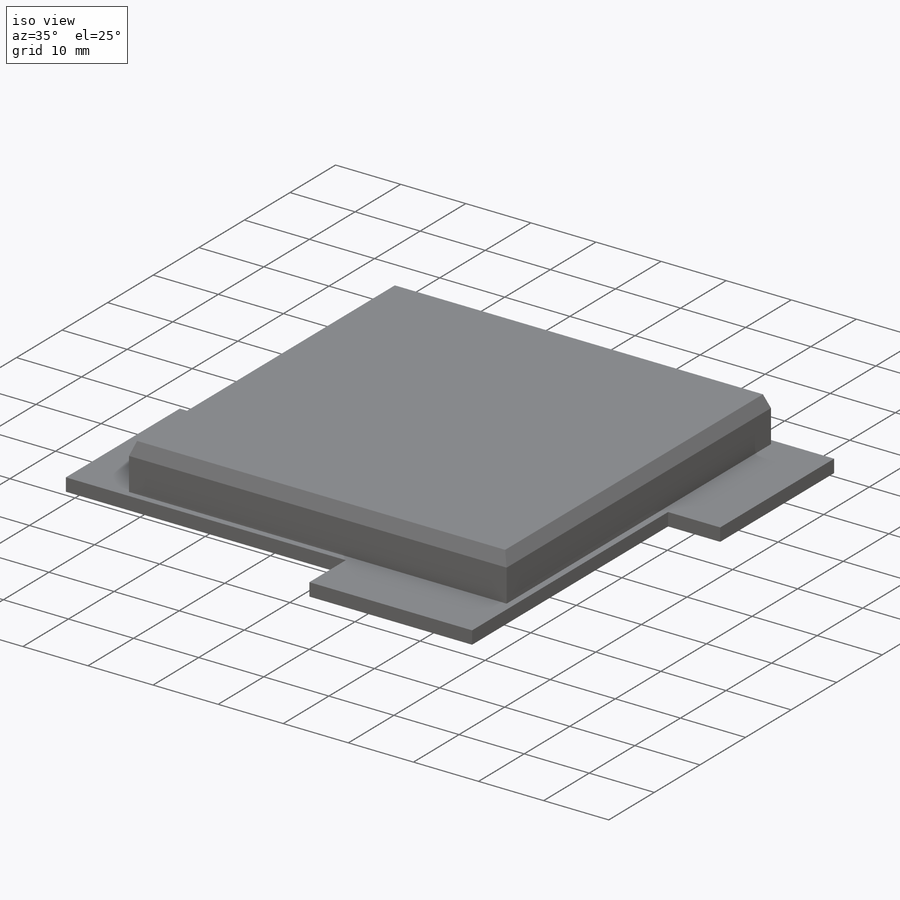
[diagram: iso view]
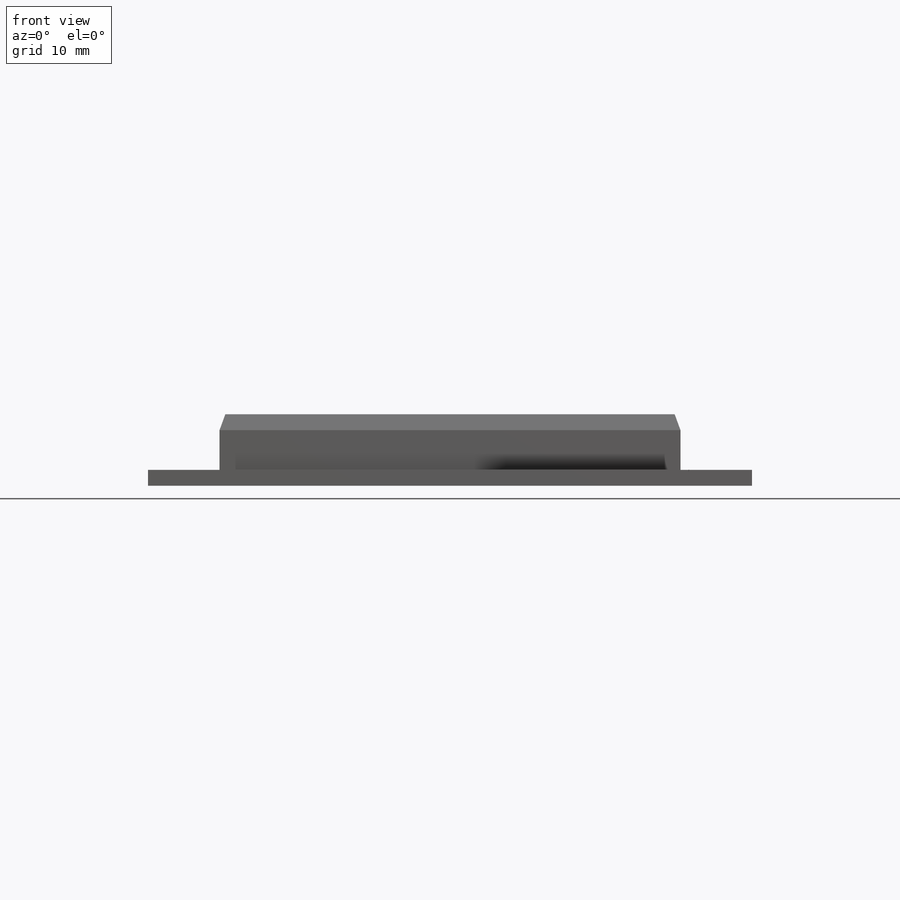
[diagram: front view]
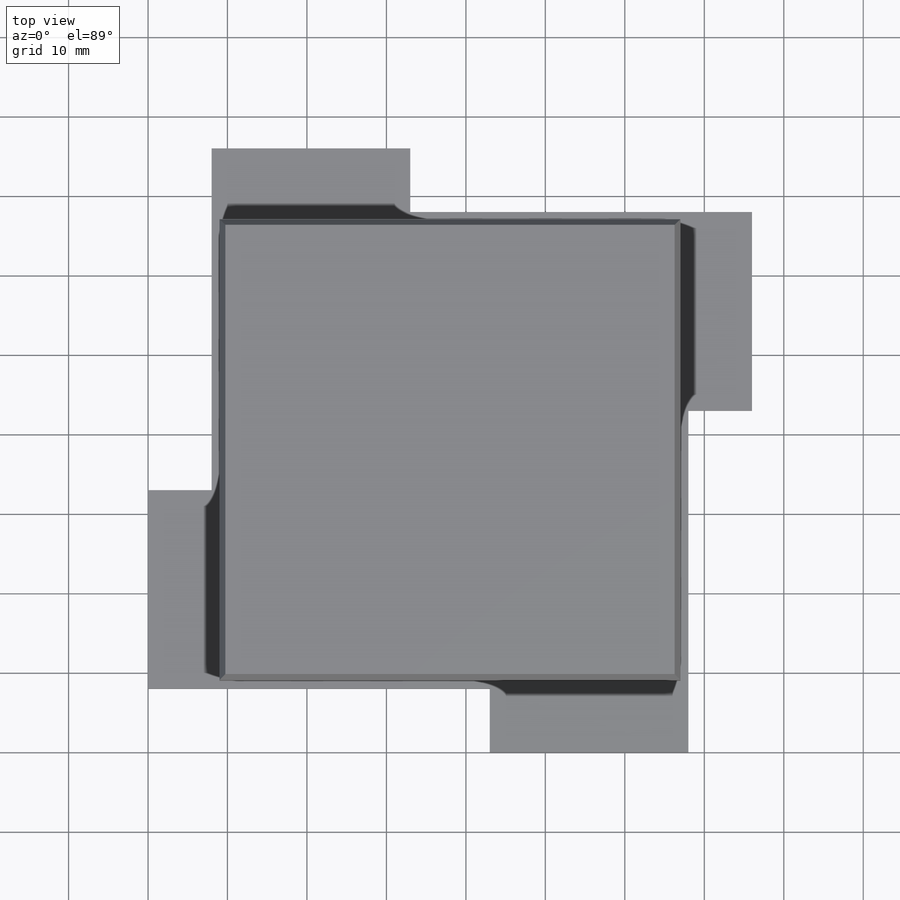
[diagram: top view]
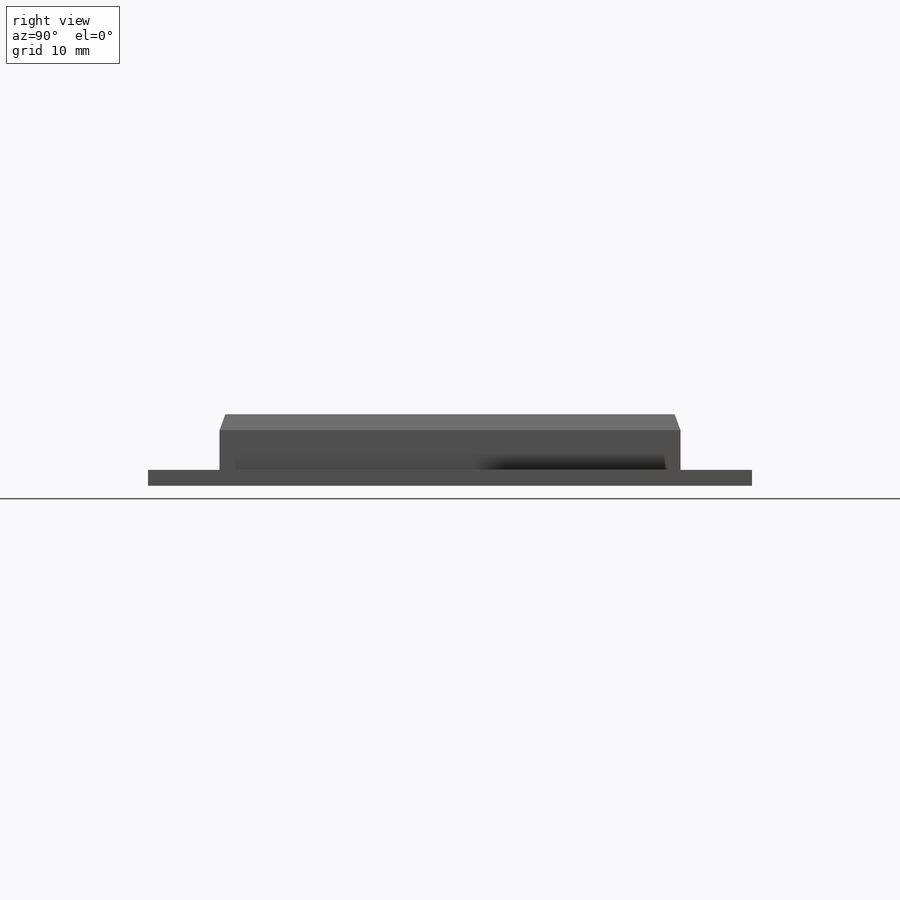
[diagram: right view]
SOLIDWORKS PART (.sldprt)
format: sldprt  version: not decoded by parser v0  size: 411,136 bytes
history: native  units: mm
features: plane x3, sketch x3, extrude x3, material x1 (+10 scaffold rows collapsed)
feature tree (20):
  scaffold x10  (default folders/planes/origin — collapsed)
  material  "Acrylique (impact moyen-haut)"
  plane  "Plan de face"
  plane  "Plan de dessus"
  plane  "Plan de droite"
  sketch  "Esquisse1"  dims[c1.D1=60.0mm c1.D2=60.0mm c1.D3=8.0mm c1.D4=8.0mm c1.D5=30.0mm c1.D6=8.0mm c1.D7=8.0mm c1.D8=8.0mm c1.D9=8.0mm c1.D10=8.0mm c1.D11=25.0mm c1.D12=25.0mm c1.D13=25.0mm c2.D5=25.0mm]
  extrude  "Boss.-Extru.1"  Depth=2mm
  sketch  "Esquisse2"  dims[c1.D1=2.0mm c1.D2=2.0mm c2.D1=1.0mm c2.D2=1.0mm c2.D3=1.0mm c2.D4=1.0mm]
  extrude  "Boss.-Extru.2"  Depth=5mm
  extrude  "Boss.-Extru.3"  [1 undecoded]
  sketch  "Esquisse2<3>"  dims[D1=2.0mm D3=20.0deg D19=5.0mm]
decode coverage: 5 of 6 modeling features carry decoded parameters
note: 1 parameter value undecoded
note: suppression state not decoded; provenance and decode notes live in map.json
